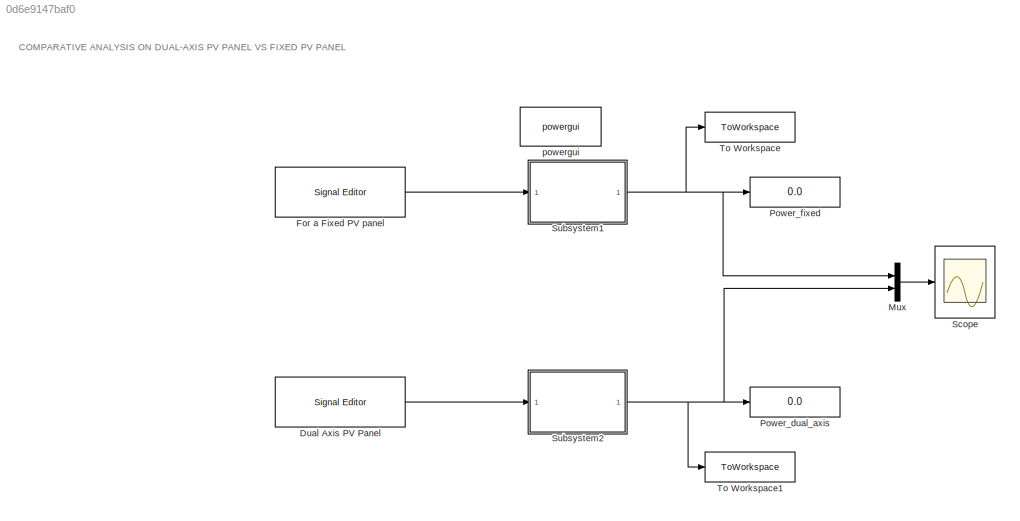
MODEL slx_0d6e9147baf0
KIND model
CONFIG AbsTol = auto
CONFIG EnableMultiTasking = off
CONFIG FixedStep = auto
CONFIG MaxStep = 1e-4
CONFIG MinStep = auto
CONFIG RelTol = 1e-3
CONFIG SampleTimeConstraint = Unconstrained
CONFIG SolverName = ode23t
CONFIG StartTime = 0.0
CONFIG StopTime = 24
BLOCK [Reference] Dual Axis PV Panel  REF=SignalEditorBlockLib/Signal Editor
  LibrarySourceBlock = simulink/Sources/Signal Editor
  SourceBlock = SignalEditorBlockLib/Signal Editor
  SourceType = SignalEditor
  UserDataPersistent = on
BLOCK [Reference] For a Fixed PV panel  REF=SignalEditorBlockLib/Signal Editor
  LibrarySourceBlock = simulink/Sources/Signal Editor
  SourceBlock = SignalEditorBlockLib/Signal Editor
  SourceType = SignalEditor
  UserDataPersistent = on
BLOCK [Mux] Mux
  DisplayOption = bar
  Inputs = 2
BLOCK [Display] Power_dual_axis
  Decimation = 1
BLOCK [Display] Power_fixed 
  Decimation = 1
BLOCK [Scope] Scope
  Floating = off
  NumInputPorts = 1
  ScopeSpecificationString = Simulink.scopes.TimeScopeBlockCfg('CurrentConfiguration', extmgr.ConfigurationSet(extmgr.Configuration('Core','General UI',true,'FigureColor',[1 1 1]),extmgr.Configuration('Core','Source UI',true),extmgr.Configuration('Sources','WiredSimulink',true,'DataLoggingVariableName','ScopeData1'),extmgr.Configuration('Visuals','Time Domain',true,'SerializedDisplays',{struct('MinYLimReal','-25.04612','MaxYL...<+1697ch>
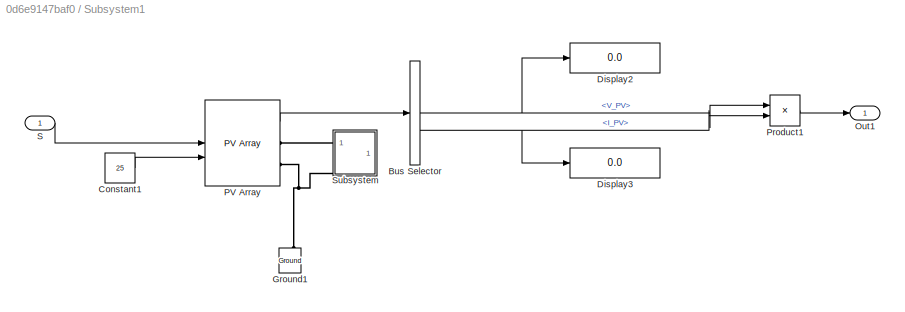
BLOCK [SubSystem] Subsystem1
BLOCK [BusSelector] Subsystem1/Bus Selector
  OutputSignals = V_PV,I_PV
BLOCK [Constant] Subsystem1/Constant1
  Value = 25
BLOCK [Display] Subsystem1/Display2
  Decimation = 1
BLOCK [Display] Subsystem1/Display3
  Decimation = 1
BLOCK [Reference] Subsystem1/Ground1  REF=spsGroundLib/Ground
  LibrarySourceBlock = sps_lib/Utilities/Ground
  NameLocation = right
  SourceBlock = spsGroundLib/Ground
  SourceType = Ground
BLOCK [Outport] Subsystem1/Out1
BLOCK [Reference] Subsystem1/PV Array  REF=spsPVArrayLib/PV Array
  LibrarySourceBlock = sps_lib/Sources/PV Array
  SourceBlock = spsPVArrayLib/PV Array
  SourceType = PV array
BLOCK [Product] Subsystem1/Product1
BLOCK [Inport] Subsystem1/S
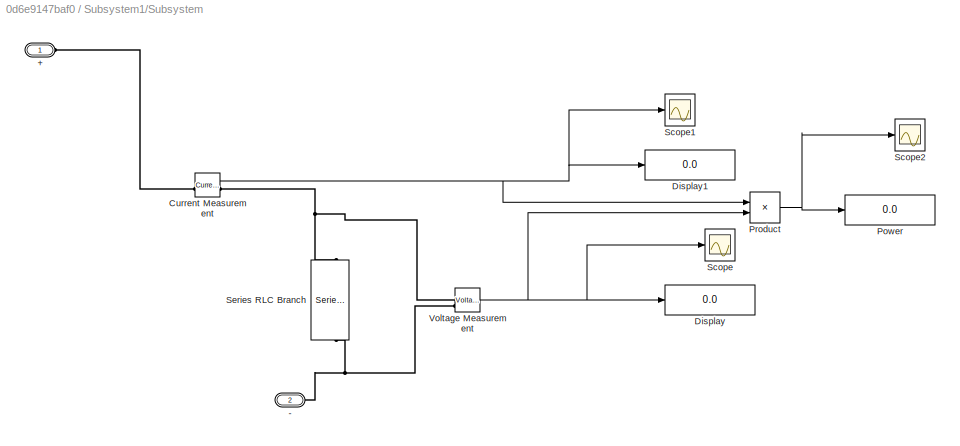
BLOCK [SubSystem] Subsystem1/Subsystem
BLOCK [PMIOPort] Subsystem1/Subsystem/+
  Side = Left
BLOCK [PMIOPort] Subsystem1/Subsystem/-
  Port = 2
  Side = Left
BLOCK [Reference] Subsystem1/Subsystem/Current Measurement  REF=spsCurrentMeasurementLib/Current Measurement
  LibrarySourceBlock = sps_lib/Sensors and Measurements/Current Measurement
  SourceBlock = spsCurrentMeasurementLib/Current Measurement
  SourceType = Current Measurement
  UserDataPersistent = on
BLOCK [Display] Subsystem1/Subsystem/Display
  Decimation = 1
BLOCK [Display] Subsystem1/Subsystem/Display1
  Decimation = 1
BLOCK [Display] Subsystem1/Subsystem/Power
  Decimation = 1
BLOCK [Product] Subsystem1/Subsystem/Product
BLOCK [Scope] Subsystem1/Subsystem/Scope
  Floating = off
  NumInputPorts = 1
  ScopeSpecificationString = Simulink.scopes.TimeScopeBlockCfg('CurrentConfiguration', extmgr.ConfigurationSet(extmgr.Configuration('Core','General UI',true),extmgr.Configuration('Core','Source UI',true),extmgr.Configuration('Sources','WiredSimulink',true),extmgr.Configuration('Visuals','Time Domain',true,'SerializedDisplays',{struct('MinYLimReal','26.29432','MaxYLimReal','26.50255','YLabelReal','','MinYLimMag','26.29432','Ma...<+1443ch>
BLOCK [Scope] Subsystem1/Subsystem/Scope1
  Floating = off
  NumInputPorts = 1
  ScopeSpecificationString = Simulink.scopes.TimeScopeBlockCfg('CurrentConfiguration', extmgr.ConfigurationSet(extmgr.Configuration('Core','General UI',true),extmgr.Configuration('Core','Source UI',true),extmgr.Configuration('Sources','WiredSimulink',true,'DataLoggingVariableName','ScopeData1'),extmgr.Configuration('Visuals','Time Domain',true,'SerializedDisplays',{struct('MinYLimReal','7.55003','MaxYLimReal','7.60898','YLabe...<+1474ch>
BLOCK [Scope] Subsystem1/Subsystem/Scope2
  Floating = off
  NumInputPorts = 1
  ScopeSpecificationString = Simulink.scopes.TimeScopeBlockCfg('CurrentConfiguration', extmgr.ConfigurationSet(extmgr.Configuration('Core','General UI',true),extmgr.Configuration('Core','Source UI',true),extmgr.Configuration('Sources','WiredSimulink',true,'DataLoggingVariableName','ScopeData2'),extmgr.Configuration('Visuals','Time Domain',true,'SerializedDisplays',{struct('MinYLimReal','-14.80675','MaxYLimReal','133.26073','Y...<+1563ch>
BLOCK [Reference] Subsystem1/Subsystem/Series RLC Branch  REF=spsSeriesRLCBranchLib/Series RLC Branch
  LibrarySourceBlock = sps_lib/Passives/Series RLC Branch
  NameLocation = left
  SourceBlock = spsSeriesRLCBranchLib/Series RLC Branch
  SourceType = Series RLC Branch
BLOCK [Reference] Subsystem1/Subsystem/Voltage Measurement  REF=spsVoltageMeasurementLib/Voltage Measurement
  LibrarySourceBlock = sps_lib/Sensors and Measurements/Voltage Measurement
  SourceBlock = spsVoltageMeasurementLib/Voltage Measurement
  SourceType = Voltage Measurement
  UserDataPersistent = on
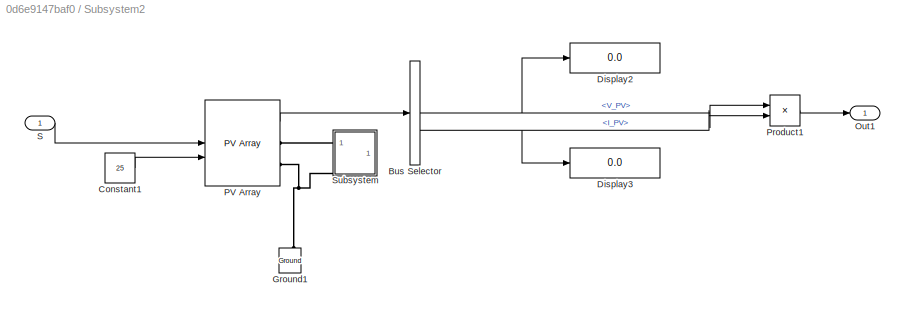
BLOCK [SubSystem] Subsystem2
BLOCK [BusSelector] Subsystem2/Bus Selector
  OutputSignals = V_PV,I_PV
BLOCK [Constant] Subsystem2/Constant1
  Value = 25
BLOCK [Display] Subsystem2/Display2
  Decimation = 1
BLOCK [Display] Subsystem2/Display3
  Decimation = 1
BLOCK [Reference] Subsystem2/Ground1  REF=spsGroundLib/Ground
  LibrarySourceBlock = sps_lib/Utilities/Ground
  NameLocation = right
  SourceBlock = spsGroundLib/Ground
  SourceType = Ground
BLOCK [Outport] Subsystem2/Out1
BLOCK [Reference] Subsystem2/PV Array  REF=spsPVArrayLib/PV Array
  LibrarySourceBlock = sps_lib/Sources/PV Array
  SourceBlock = spsPVArrayLib/PV Array
  SourceType = PV array
BLOCK [Product] Subsystem2/Product1
BLOCK [Inport] Subsystem2/S
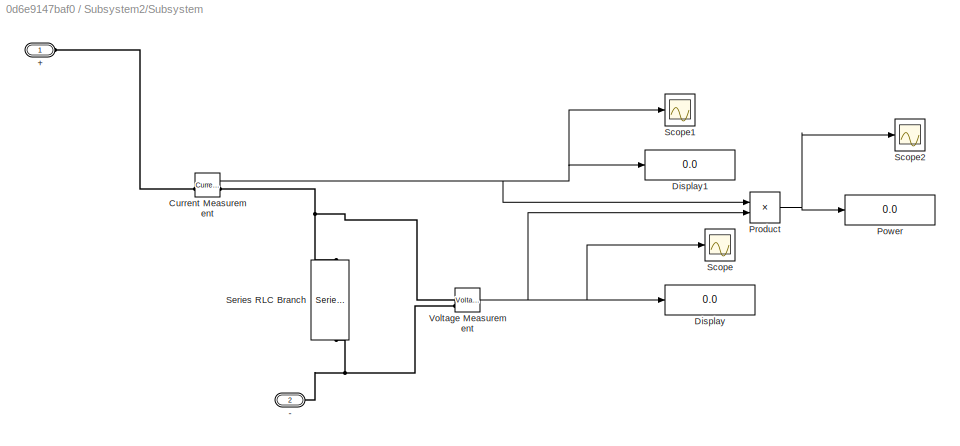
BLOCK [SubSystem] Subsystem2/Subsystem
BLOCK [PMIOPort] Subsystem2/Subsystem/+
  Side = Left
BLOCK [PMIOPort] Subsystem2/Subsystem/-
  Port = 2
  Side = Left
BLOCK [Reference] Subsystem2/Subsystem/Current Measurement  REF=spsCurrentMeasurementLib/Current Measurement
  LibrarySourceBlock = sps_lib/Sensors and Measurements/Current Measurement
  SourceBlock = spsCurrentMeasurementLib/Current Measurement
  SourceType = Current Measurement
  UserDataPersistent = on
BLOCK [Display] Subsystem2/Subsystem/Display
  Decimation = 1
BLOCK [Display] Subsystem2/Subsystem/Display1
  Decimation = 1
BLOCK [Display] Subsystem2/Subsystem/Power
  Decimation = 1
BLOCK [Product] Subsystem2/Subsystem/Product
BLOCK [Scope] Subsystem2/Subsystem/Scope
  Floating = off
  NumInputPorts = 1
  ScopeSpecificationString = Simulink.scopes.TimeScopeBlockCfg('CurrentConfiguration', extmgr.ConfigurationSet(extmgr.Configuration('Core','General UI',true),extmgr.Configuration('Core','Source UI',true),extmgr.Configuration('Sources','WiredSimulink',true),extmgr.Configuration('Visuals','Time Domain',true,'SerializedDisplays',{struct('MinYLimReal','26.29432','MaxYLimReal','26.50255','YLabelReal','','MinYLimMag','26.29432','Ma...<+1443ch>
BLOCK [Scope] Subsystem2/Subsystem/Scope1
  Floating = off
  NumInputPorts = 1
  ScopeSpecificationString = Simulink.scopes.TimeScopeBlockCfg('CurrentConfiguration', extmgr.ConfigurationSet(extmgr.Configuration('Core','General UI',true),extmgr.Configuration('Core','Source UI',true),extmgr.Configuration('Sources','WiredSimulink',true,'DataLoggingVariableName','ScopeData1'),extmgr.Configuration('Visuals','Time Domain',true,'SerializedDisplays',{struct('MinYLimReal','7.55003','MaxYLimReal','7.60898','YLabe...<+1474ch>
BLOCK [Scope] Subsystem2/Subsystem/Scope2
  Floating = off
  NumInputPorts = 1
  ScopeSpecificationString = Simulink.scopes.TimeScopeBlockCfg('CurrentConfiguration', extmgr.ConfigurationSet(extmgr.Configuration('Core','General UI',true),extmgr.Configuration('Core','Source UI',true),extmgr.Configuration('Sources','WiredSimulink',true,'DataLoggingVariableName','ScopeData2'),extmgr.Configuration('Visuals','Time Domain',true,'SerializedDisplays',{struct('MinYLimReal','-14.80675','MaxYLimReal','133.26073','Y...<+1563ch>
BLOCK [Reference] Subsystem2/Subsystem/Series RLC Branch  REF=spsSeriesRLCBranchLib/Series RLC Branch
  LibrarySourceBlock = sps_lib/Passives/Series RLC Branch
  NameLocation = left
  SourceBlock = spsSeriesRLCBranchLib/Series RLC Branch
  SourceType = Series RLC Branch
BLOCK [Reference] Subsystem2/Subsystem/Voltage Measurement  REF=spsVoltageMeasurementLib/Voltage Measurement
  LibrarySourceBlock = sps_lib/Sensors and Measurements/Voltage Measurement
  SourceBlock = spsVoltageMeasurementLib/Voltage Measurement
  SourceType = Voltage Measurement
  UserDataPersistent = on
BLOCK [ToWorkspace] To Workspace
  FixptAsFi = on
  MaxDataPoints = inf
  SampleTime = -1
  SaveFormat = Timeseries
  VariableName = Power_Fixed
BLOCK [ToWorkspace] To Workspace1
  FixptAsFi = on
  MaxDataPoints = inf
  SampleTime = -1
  SaveFormat = Timeseries
  VariableName = Power_Tracker
BLOCK [Reference] powergui  REF=sps_lib/powergui
  LibrarySourceBlock = sps_lib/powergui
  Priority = 1
  SourceBlock = sps_lib/powergui
  SourceType = PSB option menu block
ANNOTATION (root): COMPARATIVE ANALYSIS ON DUAL-AXIS PV PANEL VS FIXED PV PANEL
LINE Dual Axis PV Panel:1 -> Subsystem2:1
LINE For a Fixed PV panel:1 -> Subsystem1:1
LINE Mux:1 -> Scope:1
NET Subsystem1/Bus Selector:1 -> Subsystem1/Display2:1, Subsystem1/Product1:1
NET Subsystem1/Bus Selector:2 -> Subsystem1/Display3:1, Subsystem1/Product1:2
LINE Subsystem1/Constant1:1 -> Subsystem1/PV Array:2
LINE Subsystem1/PV Array:1 -> Subsystem1/Bus Selector:1
LINE Subsystem1/Product1:1 -> Subsystem1/Out1:1
LINE Subsystem1/S:1 -> Subsystem1/PV Array:1
NET Subsystem1/Subsystem/Current Measurement:1 -> Subsystem1/Subsystem/Display1:1, Subsystem1/Subsystem/Product:1, Subsystem1/Subsystem/Scope1:1
NET Subsystem1/Subsystem/Product:1 -> Subsystem1/Subsystem/Power:1, Subsystem1/Subsystem/Scope2:1
NET Subsystem1/Subsystem/Voltage Measurement:1 -> Subsystem1/Subsystem/Display:1, Subsystem1/Subsystem/Product:2, Subsystem1/Subsystem/Scope:1
NET Subsystem1:1 -> Mux:1, Power_fixed :1, To Workspace:1
NET Subsystem2/Bus Selector:1 -> Subsystem2/Display2:1, Subsystem2/Product1:1
NET Subsystem2/Bus Selector:2 -> Subsystem2/Display3:1, Subsystem2/Product1:2
LINE Subsystem2/Constant1:1 -> Subsystem2/PV Array:2
LINE Subsystem2/PV Array:1 -> Subsystem2/Bus Selector:1
LINE Subsystem2/Product1:1 -> Subsystem2/Out1:1
LINE Subsystem2/S:1 -> Subsystem2/PV Array:1
NET Subsystem2/Subsystem/Current Measurement:1 -> Subsystem2/Subsystem/Display1:1, Subsystem2/Subsystem/Product:1, Subsystem2/Subsystem/Scope1:1
NET Subsystem2/Subsystem/Product:1 -> Subsystem2/Subsystem/Power:1, Subsystem2/Subsystem/Scope2:1
NET Subsystem2/Subsystem/Voltage Measurement:1 -> Subsystem2/Subsystem/Display:1, Subsystem2/Subsystem/Product:2, Subsystem2/Subsystem/Scope:1
NET Subsystem2:1 -> Mux:2, Power_dual_axis:1, To Workspace1:1
PNET net1: Subsystem1/Ground1:LConn1 -- Subsystem1/PV Array:RConn2 -- Subsystem1/Subsystem:LConn2
PLINE Subsystem1/PV Array:RConn1 -- Subsystem1/Subsystem:LConn1
PLINE Subsystem1/Subsystem/+:RConn1 -- Subsystem1/Subsystem/Current Measurement:LConn1
PNET net2: Subsystem1/Subsystem/-:RConn1 -- Subsystem1/Subsystem/Series RLC Branch:RConn1 -- Subsystem1/Subsystem/Voltage Measurement:LConn2
PNET net3: Subsystem1/Subsystem/Current Measurement:RConn1 -- Subsystem1/Subsystem/Series RLC Branch:LConn1 -- Subsystem1/Subsystem/Voltage Measurement:LConn1
PNET net4: Subsystem2/Ground1:LConn1 -- Subsystem2/PV Array:RConn2 -- Subsystem2/Subsystem:LConn2
PLINE Subsystem2/PV Array:RConn1 -- Subsystem2/Subsystem:LConn1
PLINE Subsystem2/Subsystem/+:RConn1 -- Subsystem2/Subsystem/Current Measurement:LConn1
PNET net5: Subsystem2/Subsystem/-:RConn1 -- Subsystem2/Subsystem/Series RLC Branch:RConn1 -- Subsystem2/Subsystem/Voltage Measurement:LConn2
PNET net6: Subsystem2/Subsystem/Current Measurement:RConn1 -- Subsystem2/Subsystem/Series RLC Branch:LConn1 -- Subsystem2/Subsystem/Voltage Measurement:LConn1
note: NET lines group one-source signal fan-out (src -> all destinations, sorted); 1:1 wires keep LINE; PNET lines group multi-terminal physical nets as a canonical sorted terminal list (undirected conserving connections); 2-terminal nets keep the pairwise PLINE form
